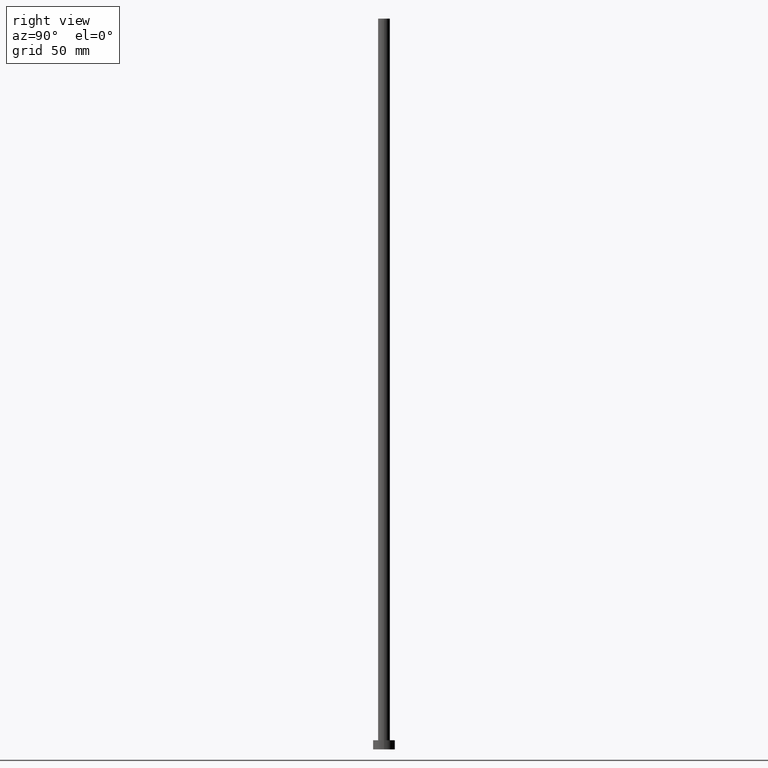
[diagram: clean part render]
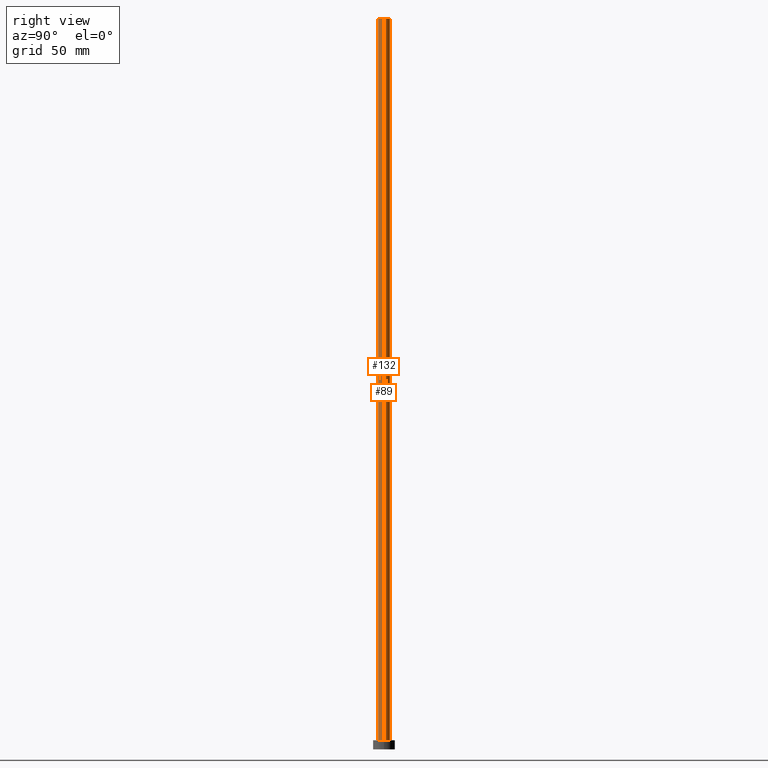
[diagram: same view with one multi-face feature highlighted, each face labeled with its STEP entity id]
A machine part, right view. The highlighted faces form ONE feature: a constant-radius fillet chain: 2 tangent blend faces with common blend radius 3.25 mm. The faces share edges in the B-rep.
Their STEP definitions:
[1] entity #89 (Cylinder):
#4 = CARTESIAN_POINT ( 'NONE',  ( 0.000000000000000000, 0.000000000000000000, 5.000000000000000000 ) ) ;
#9 = AXIS2_PLACEMENT_3D ( 'NONE', #4, #96, #158 ) ;
#21 = EDGE_CURVE ( 'NONE', #217, #101, #86, .T. ) ;
#39 = CYLINDRICAL_SURFACE ( 'NONE', #173, 3.250000000000000444 ) ;
#42 = DIRECTION ( 'NONE',  ( -1.000000000000000000, 0.000000000000000000, 0.000000000000000000 ) ) ;
#43 = ORIENTED_EDGE ( 'NONE', *, *, #149, .F. ) ;
#47 = VECTOR ( 'NONE', #198, 1000.000000000000000 ) ;
#63 = ORIENTED_EDGE ( 'NONE', *, *, #99, .T. ) ;
#72 = VECTOR ( 'NONE', #199, 1000.000000000000000 ) ;
#78 = LINE ( 'NONE', #177, #47 ) ;
#80 = VERTEX_POINT ( 'NONE', #195 ) ;
#86 = CIRCLE ( 'NONE', #221, 3.250000000000000444 ) ;
#89 = ADVANCED_FACE ( 'NONE', ( #98 ), #39, .T. ) ;
#96 = DIRECTION ( 'NONE',  ( 0.000000000000000000, 0.000000000000000000, 1.000000000000000000 ) ) ;
#98 = FACE_OUTER_BOUND ( 'NONE', #143, .T. ) ;
#99 = EDGE_CURVE ( 'NONE', #217, #80, #216, .T. ) ;
#101 = VERTEX_POINT ( 'NONE', #114 ) ;
#104 = DIRECTION ( 'NONE',  ( 0.000000000000000000, 0.000000000000000000, 1.000000000000000000 ) ) ;
#106 = ORIENTED_EDGE ( 'NONE', *, *, #119, .T. ) ;
#114 = CARTESIAN_POINT ( 'NONE',  ( -3.250000000000000444, 0.000000000000000000, 400.0000000000000000 ) ) ;
#119 = EDGE_CURVE ( 'NONE', #80, #227, #124, .T. ) ;
#120 = CARTESIAN_POINT ( 'NONE',  ( 3.250000000000000444, 3.980102097228897245E-16, 400.0000000000000000 ) ) ;
#124 = CIRCLE ( 'NONE', #9, 3.250000000000000444 ) ;
#142 = CARTESIAN_POINT ( 'NONE',  ( 0.000000000000000000, 0.000000000000000000, 400.0000000000000000 ) ) ;
#143 = EDGE_LOOP ( 'NONE', ( #200, #63, #106, #43 ) ) ;
#149 = EDGE_CURVE ( 'NONE', #101, #227, #78, .T. ) ;
#150 = CARTESIAN_POINT ( 'NONE',  ( 0.000000000000000000, 0.000000000000000000, 400.0000000000000000 ) ) ;
#158 = DIRECTION ( 'NONE',  ( 1.000000000000000000, 0.000000000000000000, 0.000000000000000000 ) ) ;
#173 = AXIS2_PLACEMENT_3D ( 'NONE', #142, #213, #42 ) ;
#177 = CARTESIAN_POINT ( 'NONE',  ( -3.250000000000000444, 0.000000000000000000, 400.0000000000000000 ) ) ;
#187 = DIRECTION ( 'NONE',  ( 1.000000000000000000, 0.000000000000000000, 0.000000000000000000 ) ) ;
#195 = CARTESIAN_POINT ( 'NONE',  ( 3.250000000000000444, 3.980102097228897245E-16, 5.000000000000000000 ) ) ;
#198 = DIRECTION ( 'NONE',  ( -0.000000000000000000, -0.000000000000000000, -1.000000000000000000 ) ) ;
#199 = DIRECTION ( 'NONE',  ( -0.000000000000000000, -0.000000000000000000, -1.000000000000000000 ) ) ;
#200 = ORIENTED_EDGE ( 'NONE', *, *, #21, .F. ) ;
#213 = DIRECTION ( 'NONE',  ( -0.000000000000000000, -0.000000000000000000, -1.000000000000000000 ) ) ;
#215 = CARTESIAN_POINT ( 'NONE',  ( 3.250000000000000444, 3.980102097228897245E-16, 400.0000000000000000 ) ) ;
#216 = LINE ( 'NONE', #120, #72 ) ;
#217 = VERTEX_POINT ( 'NONE', #215 ) ;
#221 = AXIS2_PLACEMENT_3D ( 'NONE', #150, #104, #187 ) ;
#227 = VERTEX_POINT ( 'NONE', #255 ) ;
#255 = CARTESIAN_POINT ( 'NONE',  ( -3.250000000000000444, 0.000000000000000000, 5.000000000000000000 ) ) ;
[2] entity #132 (Cylinder):
#1 = CYLINDRICAL_SURFACE ( 'NONE', #133, 3.250000000000000444 ) ;
#2 = EDGE_CURVE ( 'NONE', #101, #217, #121, .T. ) ;
#15 = ORIENTED_EDGE ( 'NONE', *, *, #149, .T. ) ;
#22 = FACE_OUTER_BOUND ( 'NONE', #71, .T. ) ;
#30 = ORIENTED_EDGE ( 'NONE', *, *, #2, .F. ) ;
#32 = DIRECTION ( 'NONE',  ( 0.000000000000000000, 0.000000000000000000, 1.000000000000000000 ) ) ;
#44 = AXIS2_PLACEMENT_3D ( 'NONE', #169, #32, #126 ) ;
#46 = ORIENTED_EDGE ( 'NONE', *, *, #105, .T. ) ;
#47 = VECTOR ( 'NONE', #198, 1000.000000000000000 ) ;
#59 = DIRECTION ( 'NONE',  ( 1.000000000000000000, 0.000000000000000000, 0.000000000000000000 ) ) ;
#71 = EDGE_LOOP ( 'NONE', ( #122, #30, #15, #46 ) ) ;
#72 = VECTOR ( 'NONE', #199, 1000.000000000000000 ) ;
#76 = DIRECTION ( 'NONE',  ( 0.000000000000000000, 0.000000000000000000, 1.000000000000000000 ) ) ;
#78 = LINE ( 'NONE', #177, #47 ) ;
#79 = CARTESIAN_POINT ( 'NONE',  ( 0.000000000000000000, 0.000000000000000000, 400.0000000000000000 ) ) ;
#80 = VERTEX_POINT ( 'NONE', #195 ) ;
#99 = EDGE_CURVE ( 'NONE', #217, #80, #216, .T. ) ;
#101 = VERTEX_POINT ( 'NONE', #114 ) ;
#105 = EDGE_CURVE ( 'NONE', #227, #80, #206, .T. ) ;
#114 = CARTESIAN_POINT ( 'NONE',  ( -3.250000000000000444, 0.000000000000000000, 400.0000000000000000 ) ) ;
#120 = CARTESIAN_POINT ( 'NONE',  ( 3.250000000000000444, 3.980102097228897245E-16, 400.0000000000000000 ) ) ;
#121 = CIRCLE ( 'NONE', #44, 3.250000000000000444 ) ;
#122 = ORIENTED_EDGE ( 'NONE', *, *, #99, .F. ) ;
#126 = DIRECTION ( 'NONE',  ( 1.000000000000000000, 0.000000000000000000, 0.000000000000000000 ) ) ;
#132 = ADVANCED_FACE ( 'NONE', ( #22 ), #1, .T. ) ;
#133 = AXIS2_PLACEMENT_3D ( 'NONE', #79, #163, #179 ) ;
#149 = EDGE_CURVE ( 'NONE', #101, #227, #78, .T. ) ;
#163 = DIRECTION ( 'NONE',  ( -0.000000000000000000, -0.000000000000000000, -1.000000000000000000 ) ) ;
#169 = CARTESIAN_POINT ( 'NONE',  ( 0.000000000000000000, 0.000000000000000000, 400.0000000000000000 ) ) ;
#177 = CARTESIAN_POINT ( 'NONE',  ( -3.250000000000000444, 0.000000000000000000, 400.0000000000000000 ) ) ;
#179 = DIRECTION ( 'NONE',  ( -1.000000000000000000, 0.000000000000000000, 0.000000000000000000 ) ) ;
#180 = CARTESIAN_POINT ( 'NONE',  ( 0.000000000000000000, 0.000000000000000000, 5.000000000000000000 ) ) ;
#186 = AXIS2_PLACEMENT_3D ( 'NONE', #180, #76, #59 ) ;
#195 = CARTESIAN_POINT ( 'NONE',  ( 3.250000000000000444, 3.980102097228897245E-16, 5.000000000000000000 ) ) ;
#198 = DIRECTION ( 'NONE',  ( -0.000000000000000000, -0.000000000000000000, -1.000000000000000000 ) ) ;
#199 = DIRECTION ( 'NONE',  ( -0.000000000000000000, -0.000000000000000000, -1.000000000000000000 ) ) ;
#206 = CIRCLE ( 'NONE', #186, 3.250000000000000444 ) ;
#215 = CARTESIAN_POINT ( 'NONE',  ( 3.250000000000000444, 3.980102097228897245E-16, 400.0000000000000000 ) ) ;
#216 = LINE ( 'NONE', #120, #72 ) ;
#217 = VERTEX_POINT ( 'NONE', #215 ) ;
#227 = VERTEX_POINT ( 'NONE', #255 ) ;
#255 = CARTESIAN_POINT ( 'NONE',  ( -3.250000000000000444, 0.000000000000000000, 5.000000000000000000 ) ) ;